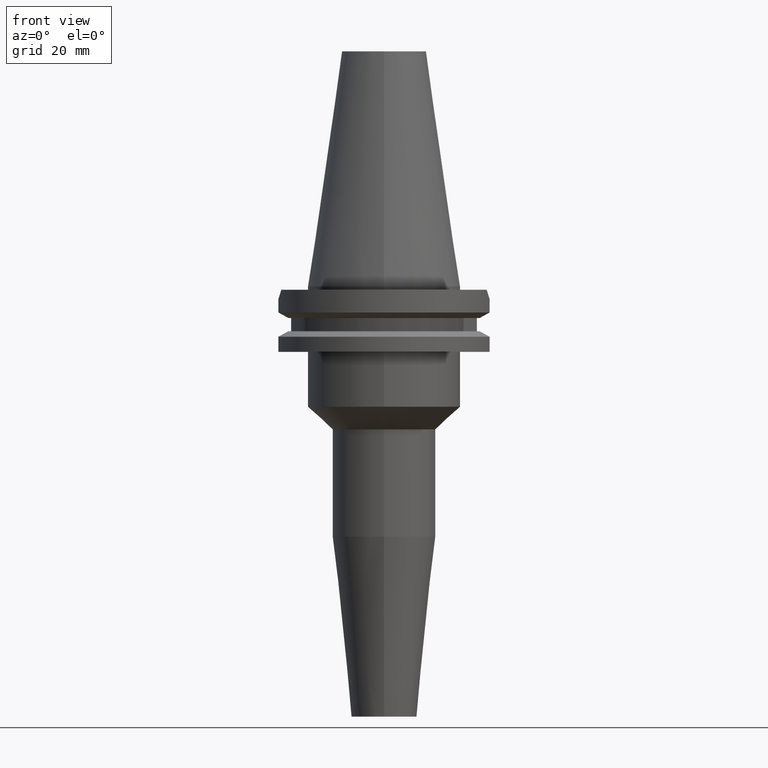
[diagram: clean part render]
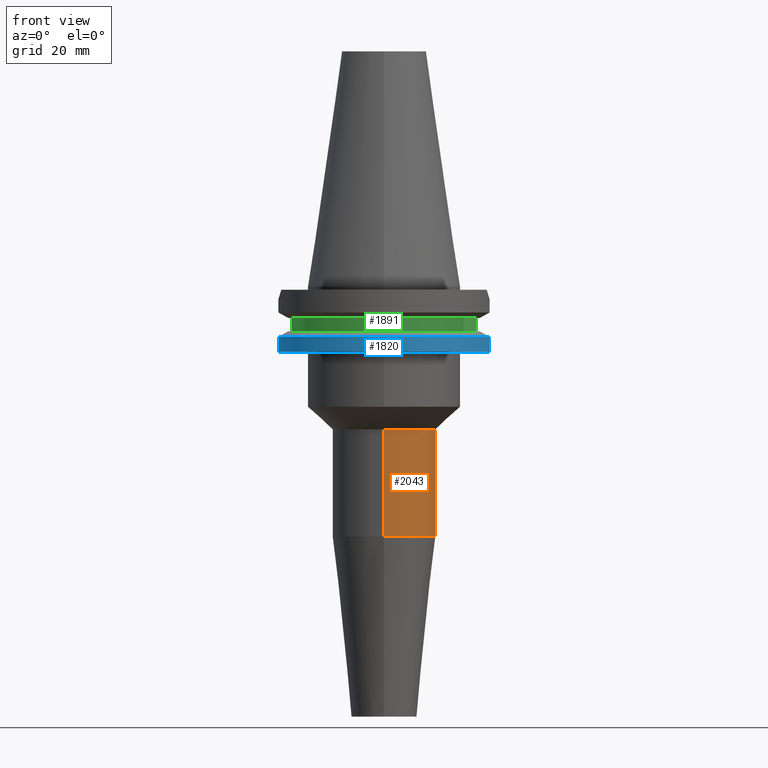
[diagram: same view with three faces highlighted in distinct colors, each labeled with its STEP entity id]
A machine part, front view with three faces highlighted in distinct colors.
Their STEP definitions:

[orange] entity #2043 — the highlighted cylindrical surface (partial cylindrical patch) has radius 15 mm, axis along (0, 0, -1).
#869=CARTESIAN_POINT('',(0.E0,0.E0,-4.155444755020E1));
#870=DIRECTION('',(0.E0,0.E0,-1.E0));
#871=DIRECTION('',(0.E0,1.E0,0.E0));
#872=AXIS2_PLACEMENT_3D('',#869,#870,#871);
#908=DIRECTION('',(0.E0,1.781120883831E-14,-1.E0));
#909=VECTOR('',#908,3.111654795158E1);
#910=CARTESIAN_POINT('',(0.E0,-1.5E1,-4.155444755020E1));
#911=LINE('',#910,#909);
#915=DIRECTION('',(0.E0,-1.781120883831E-14,-1.E0));
#916=VECTOR('',#915,3.111654795158E1);
#917=CARTESIAN_POINT('',(0.E0,1.5E1,-4.155444755020E1));
#918=LINE('',#917,#916);
#929=CARTESIAN_POINT('',(0.E0,0.E0,-7.267099550178E1));
#930=DIRECTION('',(0.E0,0.E0,1.E0));
#931=DIRECTION('',(0.E0,-1.E0,0.E0));
#932=AXIS2_PLACEMENT_3D('',#929,#930,#931);
#1210=CARTESIAN_POINT('',(0.E0,1.5E1,-7.267099550178E1));
#1211=VERTEX_POINT('',#1210);
#1212=CARTESIAN_POINT('',(0.E0,-1.5E1,-7.267099550178E1));
#1213=VERTEX_POINT('',#1212);
#1214=CARTESIAN_POINT('',(0.E0,1.5E1,-4.155444755020E1));
#1215=VERTEX_POINT('',#1214);
#1216=CARTESIAN_POINT('',(0.E0,-1.5E1,-4.155444755020E1));
#1217=VERTEX_POINT('',#1216);
#2031=CARTESIAN_POINT('',(0.E0,2.178799736533E-14,7.79125E1));
#2032=DIRECTION('',(0.E0,0.E0,-1.E0));
#2033=DIRECTION('',(0.E0,-1.E0,0.E0));
#2034=AXIS2_PLACEMENT_3D('',#2031,#2032,#2033);
#2035=CYLINDRICAL_SURFACE('',#2034,1.5E1);
#2036=ORIENTED_EDGE('',*,*,#2021,.T.);
#2038=ORIENTED_EDGE('',*,*,#2037,.F.);
#2039=ORIENTED_EDGE('',*,*,#2024,.F.);
#2040=ORIENTED_EDGE('',*,*,#1995,.F.);
#2041=EDGE_LOOP('',(#2036,#2038,#2039,#2040));
#2042=FACE_OUTER_BOUND('',#2041,.F.);
#873=CIRCLE('',#872,1.5E1);
#933=CIRCLE('',#932,1.5E1);
#1995=EDGE_CURVE('',#1215,#1217,#873,.T.);
#2021=EDGE_CURVE('',#1215,#1211,#918,.T.);
#2024=EDGE_CURVE('',#1217,#1213,#911,.T.);
#2037=EDGE_CURVE('',#1213,#1211,#933,.T.);
#2043=ADVANCED_FACE('',(#2042),#2035,.T.);

[blue] entity #1820 — the highlighted cylindrical surface (partial cylindrical patch) has radius 31.75 mm, axis along (0, 0, -1).
#235=CARTESIAN_POINT('',(0.E0,2.178799736533E-14,-1.905E1));
#236=DIRECTION('',(0.E0,0.E0,1.E0));
#237=DIRECTION('',(-9.661575315241E-1,-2.579527559055E-1,0.E0));
#238=AXIS2_PLACEMENT_3D('',#235,#236,#237);
#243=CARTESIAN_POINT('',(0.E0,2.178799736533E-14,-1.905E1));
#244=DIRECTION('',(0.E0,0.E0,1.E0));
#245=DIRECTION('',(0.E0,-1.E0,0.E0));
#246=AXIS2_PLACEMENT_3D('',#243,#244,#245);
#636=DIRECTION('',(3.682729253664E-8,1.379365346882E-7,-1.E0));
#637=VECTOR('',#636,4.396327811887E0);
#638=CARTESIAN_POINT('',(3.067550146399E1,-8.190000606414E0,-1.465367218811E1));
#639=LINE('',#638,#637);
#643=DIRECTION('',(-7.635530385591E-9,2.859818947670E-8,1.E0));
#644=VECTOR('',#643,4.396334354432E0);
#645=CARTESIAN_POINT('',(-3.067550162589E1,-8.19E0,-1.905E1));
#646=LINE('',#645,#644);
#792=CARTESIAN_POINT('',(0.E0,1.055026073065E-14,-1.465366676908E1));
#793=DIRECTION('',(0.E0,0.E0,-1.E0));
#794=DIRECTION('',(9.661575315241E-1,-2.579527559055E-1,0.E0));
#795=AXIS2_PLACEMENT_3D('',#792,#793,#794);
#800=CARTESIAN_POINT('',(0.E0,1.055026073065E-14,-1.465366676908E1));
#801=DIRECTION('',(0.E0,0.E0,-1.E0));
#802=DIRECTION('',(0.E0,-1.E0,0.E0));
#803=AXIS2_PLACEMENT_3D('',#800,#801,#802);
#1240=CARTESIAN_POINT('',(-3.067550162589E1,-8.19E0,-1.905E1));
#1241=VERTEX_POINT('',#1240);
#1242=CARTESIAN_POINT('',(2.339637701084E-14,-3.175E1,-1.905E1));
#1243=CARTESIAN_POINT('',(3.067550162589E1,-8.19E0,-1.905E1));
#1244=VERTEX_POINT('',#1242);
#1245=VERTEX_POINT('',#1243);
#1254=CARTESIAN_POINT('',(3.067550146399E1,-8.190000606414E0,
-1.465367218811E1));
#1255=VERTEX_POINT('',#1254);
#1266=CARTESIAN_POINT('',(-3.067550165946E1,-8.189999874273E0,
-1.465366564557E1));
#1267=VERTEX_POINT('',#1266);
#1268=CARTESIAN_POINT('',(0.E0,-3.175E1,-1.465366676908E1));
#1269=VERTEX_POINT('',#1268);
#1804=CARTESIAN_POINT('',(0.E0,2.178799736533E-14,7.79125E1));
#1805=DIRECTION('',(0.E0,0.E0,-1.E0));
#1806=DIRECTION('',(0.E0,-1.E0,0.E0));
#1807=AXIS2_PLACEMENT_3D('',#1804,#1805,#1806);
#1808=CYLINDRICAL_SURFACE('',#1807,3.175E1);
#1809=ORIENTED_EDGE('',*,*,#1786,.T.);
#1810=ORIENTED_EDGE('',*,*,#1505,.F.);
#1811=ORIENTED_EDGE('',*,*,#1503,.F.);
#1813=ORIENTED_EDGE('',*,*,#1812,.T.);
#1815=ORIENTED_EDGE('',*,*,#1814,.F.);
#1817=ORIENTED_EDGE('',*,*,#1816,.F.);
#1818=EDGE_LOOP('',(#1809,#1810,#1811,#1813,#1815,#1817));
#1819=FACE_OUTER_BOUND('',#1818,.F.);
#239=CIRCLE('',#238,3.175E1);
#247=CIRCLE('',#246,3.175E1);
#796=CIRCLE('',#795,3.175E1);
#804=CIRCLE('',#803,3.175E1);
#1503=EDGE_CURVE('',#1241,#1244,#239,.T.);
#1505=EDGE_CURVE('',#1244,#1245,#247,.T.);
#1786=EDGE_CURVE('',#1255,#1245,#639,.T.);
#1812=EDGE_CURVE('',#1241,#1267,#646,.T.);
#1814=EDGE_CURVE('',#1269,#1267,#804,.T.);
#1816=EDGE_CURVE('',#1255,#1269,#796,.T.);
#1820=ADVANCED_FACE('',(#1819),#1808,.T.);

[green] entity #1891 — the highlighted cylindrical surface (partial cylindrical patch) has radius 28.18 mm, axis along (0, 0, -1).
#690=CARTESIAN_POINT('',(0.E0,2.178799736533E-14,-9.2075E0));
#691=DIRECTION('',(0.E0,0.E0,-1.E0));
#692=DIRECTION('',(9.568350128908E-1,-2.906316536551E-1,0.E0));
#693=AXIS2_PLACEMENT_3D('',#690,#691,#692);
#698=CARTESIAN_POINT('',(0.E0,2.178799736533E-14,-9.2075E0));
#699=DIRECTION('',(0.E0,0.E0,-1.E0));
#700=DIRECTION('',(0.E0,-1.E0,0.E0));
#701=AXIS2_PLACEMENT_3D('',#698,#699,#700);
#729=DIRECTION('',(0.E0,0.E0,-1.E0));
#730=VECTOR('',#729,3.84E0);
#731=CARTESIAN_POINT('',(2.696361066326E1,-8.19E0,-9.2075E0));
#732=LINE('',#731,#730);
#736=DIRECTION('',(0.E0,0.E0,1.E0));
#737=VECTOR('',#736,3.84E0);
#738=CARTESIAN_POINT('',(-2.696361066326E1,-8.19E0,-1.30475E1));
#739=LINE('',#738,#737);
#766=CARTESIAN_POINT('',(0.E0,2.178799736533E-14,-1.30475E1));
#767=DIRECTION('',(0.E0,0.E0,1.E0));
#768=DIRECTION('',(-9.568350128908E-1,-2.906316536551E-1,0.E0));
#769=AXIS2_PLACEMENT_3D('',#766,#767,#768);
#774=CARTESIAN_POINT('',(0.E0,2.178799736533E-14,-1.30475E1));
#775=DIRECTION('',(0.E0,0.E0,1.E0));
#776=DIRECTION('',(0.E0,-1.E0,0.E0));
#777=AXIS2_PLACEMENT_3D('',#774,#775,#776);
#1257=CARTESIAN_POINT('',(2.696361066326E1,-8.19E0,-1.30475E1));
#1258=VERTEX_POINT('',#1257);
#1259=CARTESIAN_POINT('',(2.696361066326E1,-8.19E0,-9.2075E0));
#1260=VERTEX_POINT('',#1259);
#1283=CARTESIAN_POINT('',(-2.696361066326E1,-8.19E0,-9.2075E0));
#1284=VERTEX_POINT('',#1283);
#1285=CARTESIAN_POINT('',(-2.696361066326E1,-8.19E0,-1.30475E1));
#1286=VERTEX_POINT('',#1285);
#1314=CARTESIAN_POINT('',(4.351173924716E-14,-2.818E1,-1.30475E1));
#1315=VERTEX_POINT('',#1314);
#1320=CARTESIAN_POINT('',(-4.351173924716E-14,-2.818E1,-9.2075E0));
#1321=VERTEX_POINT('',#1320);
#1876=CARTESIAN_POINT('',(0.E0,2.178799736533E-14,7.79125E1));
#1877=DIRECTION('',(0.E0,0.E0,-1.E0));
#1878=DIRECTION('',(0.E0,-1.E0,0.E0));
#1879=AXIS2_PLACEMENT_3D('',#1876,#1877,#1878);
#1880=CYLINDRICAL_SURFACE('',#1879,2.818E1);
#1881=ORIENTED_EDGE('',*,*,#1792,.T.);
#1883=ORIENTED_EDGE('',*,*,#1882,.F.);
#1885=ORIENTED_EDGE('',*,*,#1884,.F.);
#1886=ORIENTED_EDGE('',*,*,#1834,.T.);
#1887=ORIENTED_EDGE('',*,*,#1868,.F.);
#1888=ORIENTED_EDGE('',*,*,#1866,.F.);
#1889=EDGE_LOOP('',(#1881,#1883,#1885,#1886,#1887,#1888));
#1890=FACE_OUTER_BOUND('',#1889,.F.);
#694=CIRCLE('',#693,2.818E1);
#702=CIRCLE('',#701,2.818E1);
#770=CIRCLE('',#769,2.818E1);
#778=CIRCLE('',#777,2.818E1);
#1792=EDGE_CURVE('',#1260,#1258,#732,.T.);
#1834=EDGE_CURVE('',#1286,#1284,#739,.T.);
#1866=EDGE_CURVE('',#1260,#1321,#694,.T.);
#1868=EDGE_CURVE('',#1321,#1284,#702,.T.);
#1882=EDGE_CURVE('',#1315,#1258,#778,.T.);
#1884=EDGE_CURVE('',#1286,#1315,#770,.T.);
#1891=ADVANCED_FACE('',(#1890),#1880,.T.);